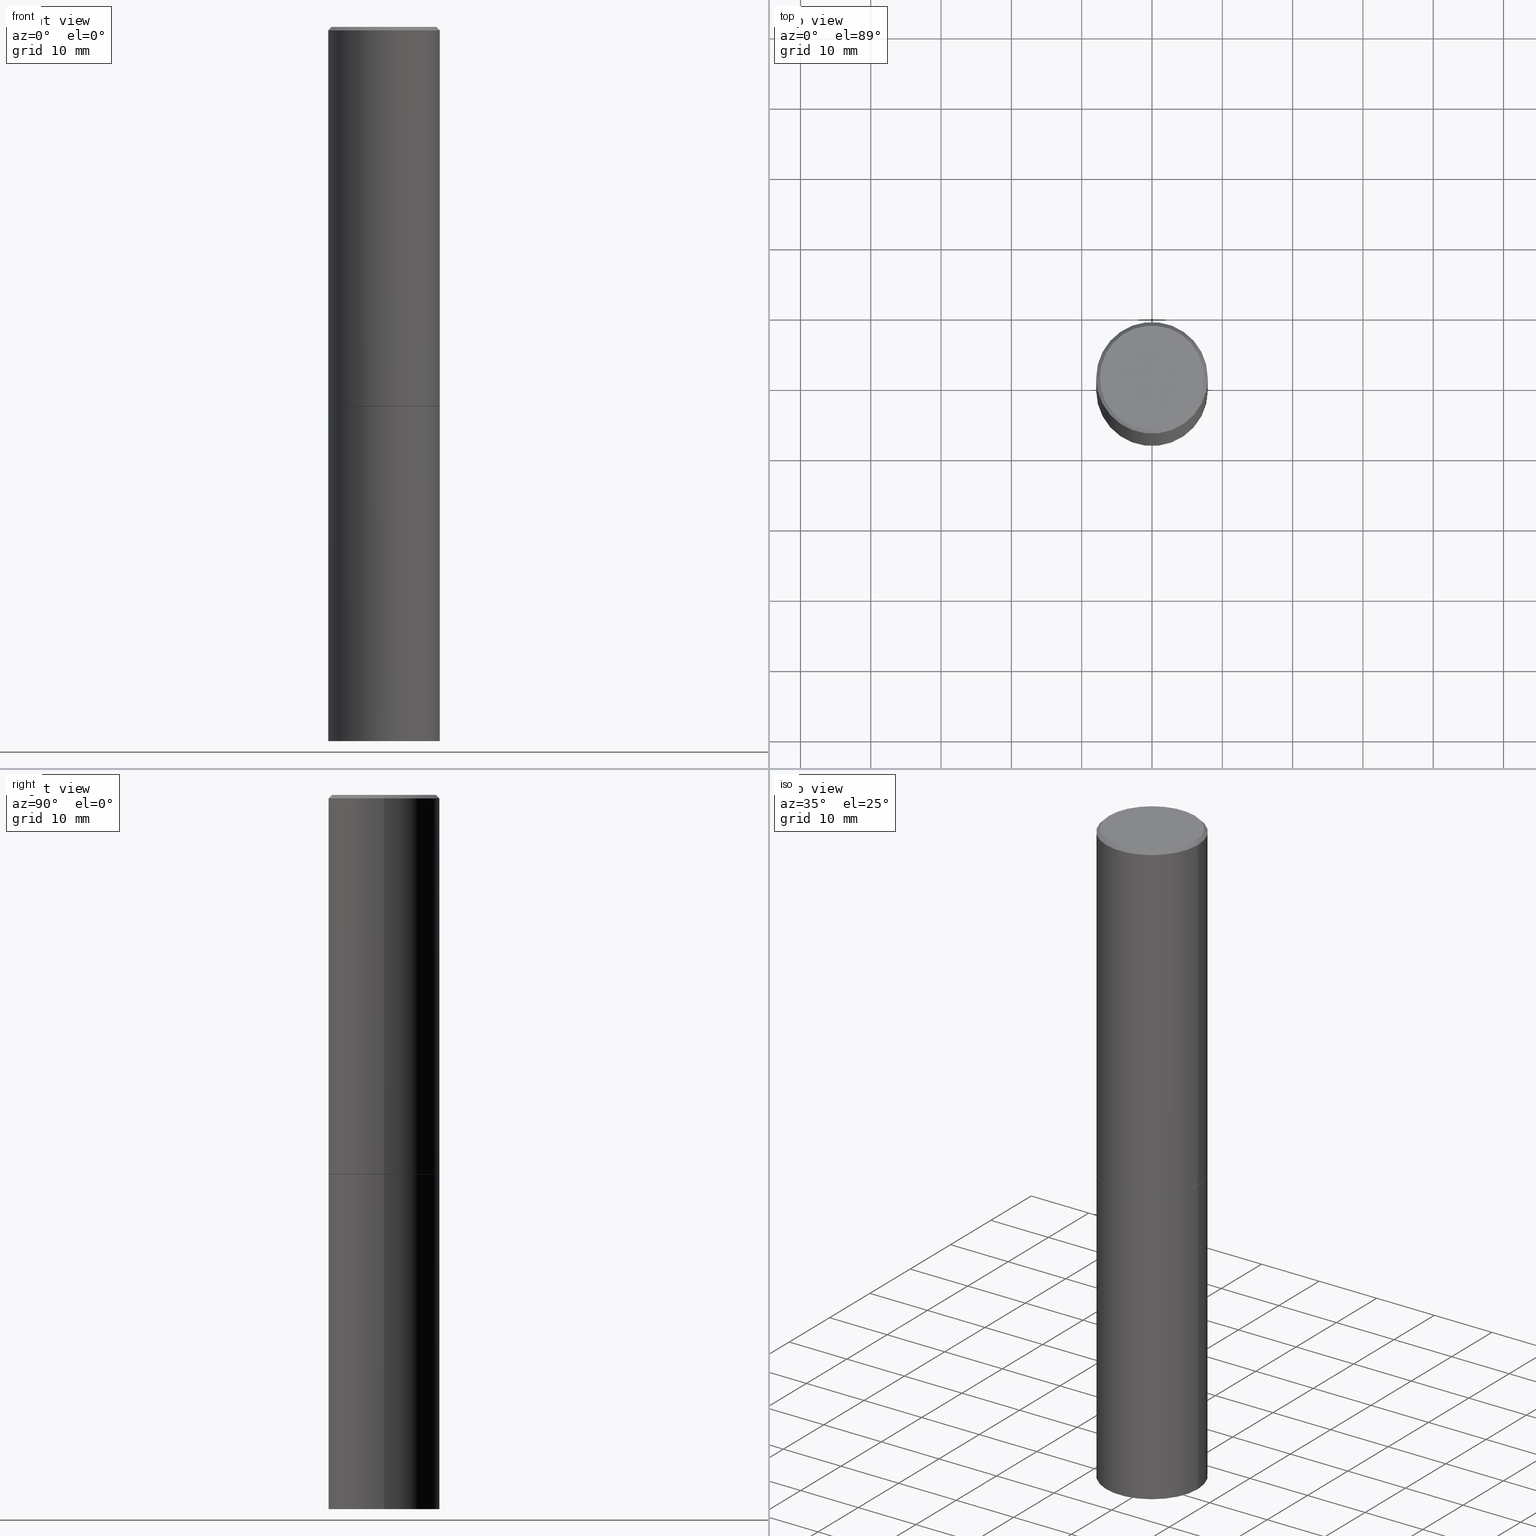
[diagram: canonical four-view strip — front | top / right | iso, engineering-drawing reading convention]
A machine part, canonical four-view strip (front | top / right | iso — engineering-drawing reading convention). The complete STEP part file that produces these views, byte-faithful:
ISO-10303-21;
HEADER;
FILE_DESCRIPTION (( 'STEP AP203' ),
    '1' );
FILE_NAME ('37562.STEP',
    '2024-02-27T22:12:02',
    ( '' ),
    ( '' ),
    'SwSTEP 2.0',
    'SolidWorks 2023',
    '' );
FILE_SCHEMA (( 'CONFIG_CONTROL_DESIGN' ));
ENDSEC;

DATA;
#1 = LOCAL_TIME ( 17, 12, 2.000000000000000000, #323 ) ;
#2 = DIRECTION ( 'NONE',  ( -0.7071067811865465735, 2.468850131082246805E-15, -0.7071067811865484609 ) ) ;
#3 = EDGE_CURVE ( 'NONE', #293, #200, #30, .T. ) ;
#4 = EDGE_CURVE ( 'NONE', #261, #140, #114, .T. ) ;
#5 = ORIENTED_EDGE ( 'NONE', *, *, #3, .F. ) ;
#6 = DIRECTION ( 'NONE',  ( 1.000000000000000000, -6.982962677686265922E-15, 4.876176775795935793E-29 ) ) ;
#7 = CIRCLE ( 'NONE', #119, 0.3124999999999998335 ) ;
#8 = FACE_OUTER_BOUND ( 'NONE', #285, .T. ) ;
#9 = CALENDAR_DATE ( 2024, 27, 2 ) ;
#10 = CARTESIAN_POINT ( 'NONE',  ( 2.042516583223231356E-15, 0.2924999999999997602, -1.019124035366569212E-15 ) ) ;
#11 = DIRECTION ( 'NONE',  ( 2.445468806185136597E-29, -3.491481338843145583E-15, -1.000000000000000000 ) ) ;
#12 = DIRECTION ( 'NONE',  ( 1.000000000000000000, -6.982962677686265133E-15, 0.000000000000000000 ) ) ;
#13 =( LENGTH_UNIT ( ) NAMED_UNIT ( * ) SI_UNIT ( $, .METRE. ) );
#14 = DIRECTION ( 'NONE',  ( -2.445468806185136877E-29, 3.491481338843145188E-15, 1.000000000000000000 ) ) ;
#15 = CARTESIAN_POINT ( 'NONE',  ( 0.2924999999999997602, -2.110215457714318353E-15, 4.268512490114932791E-18 ) ) ;
#16 = DIRECTION ( 'NONE',  ( -2.445468806185136877E-29, 3.491481338843145188E-15, 1.000000000000000000 ) ) ;
#17 = PRODUCT_RELATED_PRODUCT_CATEGORY ( 'detail', '', ( #359 ) ) ;
#18 = APPLICATION_CONTEXT ( 'configuration controlled 3d designs of mechanical parts and assemblies' ) ;
#19 = DIRECTION ( 'NONE',  ( 1.000000000000000000, -6.982962677686265133E-15, 0.000000000000000000 ) ) ;
#20 = ORIENTED_EDGE ( 'NONE', *, *, #127, .T. ) ;
#21 = PERSON_AND_ORGANIZATION ( #284, #154 ) ;
#22 = CARTESIAN_POINT ( 'NONE',  ( 4.890937612370292426E-31, -6.982962677686317493E-17, -0.02000000000000007674 ) ) ;
#23 = VECTOR ( 'NONE', #14, 39.37007874015748143 ) ;
#24 = DIRECTION ( 'NONE',  ( -1.000000000000000000, 6.982962677686265922E-15, -4.876176775795935793E-29 ) ) ;
#25 = APPROVAL_PERSON_ORGANIZATION ( #21, #265, #283 ) ;
#26 = APPROVAL_DATE_TIME ( #76, #265 ) ;
#27 = DIRECTION ( 'NONE',  ( 1.000000000000000000, -6.982962677686269077E-15, 0.000000000000000000 ) ) ;
#28 = EDGE_LOOP ( 'NONE', ( #366, #203, #69, #118 ) ) ;
#29 = VERTEX_POINT ( 'NONE', #106 ) ;
#30 = LINE ( 'NONE', #132, #278 ) ;
#31 = AXIS2_PLACEMENT_3D ( 'NONE', #100, #92, #185 ) ;
#32 = DIRECTION ( 'NONE',  ( -2.445468806185136597E-29, 3.491481338843145583E-15, 1.000000000000000000 ) ) ;
#33 = CONICAL_SURFACE ( 'NONE', #325, 0.3124999999999998335, 0.7853981633974469467 ) ;
#34 = DATE_TIME_ROLE ( 'creation_date' ) ;
#35 = DIRECTION ( 'NONE',  ( 1.000000000000000000, -6.982962677686269077E-15, 0.000000000000000000 ) ) ;
#36 = ORIENTED_EDGE ( 'NONE', *, *, #109, .T. ) ;
#37 = FACE_OUTER_BOUND ( 'NONE', #286, .T. ) ;
#38 = VECTOR ( 'NONE', #347, 39.37007874015748143 ) ;
#39 = DIRECTION ( 'NONE',  ( 1.000000000000000000, -6.982962677686265133E-15, 0.000000000000000000 ) ) ;
#40 = APPROVAL_DATE_TIME ( #300, #145 ) ;
#41 = DIRECTION ( 'NONE',  ( 1.000000000000000000, -6.982962677686266711E-15, 4.876176775795935232E-29 ) ) ;
#42 = SECURITY_CLASSIFICATION_LEVEL ( 'unclassified' ) ;
#43 = DIRECTION ( 'NONE',  ( -2.445468806185136597E-29, 3.491481338843145583E-15, 1.000000000000000000 ) ) ;
#44 = PERSON_AND_ORGANIZATION_ROLE ( 'design_owner' ) ;
#45 = CARTESIAN_POINT ( 'NONE',  ( 0.000000000000000000, 0.000000000000000000, 0.000000000000000000 ) ) ;
#46 = ADVANCED_FACE ( 'NONE', ( #328 ), #130, .T. ) ;
#47 = ADVANCED_FACE ( 'NONE', ( #277 ), #279, .T. ) ;
#48 = DIRECTION ( 'NONE',  ( -2.445468806185136597E-29, 3.491481338843145583E-15, 1.000000000000000000 ) ) ;
#49 = FACE_OUTER_BOUND ( 'NONE', #149, .T. ) ;
#50 = AXIS2_PLACEMENT_3D ( 'NONE', #89, #91, #39 ) ;
#51 = APPROVAL_PERSON_ORGANIZATION ( #258, #294, #121 ) ;
#52 = CARTESIAN_POINT ( 'NONE',  ( -0.3114999999999999991, -5.206057223148969973E-15, -2.124999999999999556 ) ) ;
#53 = PLANE ( 'NONE',  #95 ) ;
#54 = VERTEX_POINT ( 'NONE', #15 ) ;
#55 = APPLICATION_CONTEXT ( 'configuration controlled 3d designs of mechanical parts and assemblies' ) ;
#56 = CC_DESIGN_PERSON_AND_ORGANIZATION_ASSIGNMENT ( #332, #44, ( #359 ) ) ;
#57 = AXIS2_PLACEMENT_3D ( 'NONE', #94, #65, #214 ) ;
#58 = CC_DESIGN_APPROVAL ( #265, ( #84 ) ) ;
#59 = CARTESIAN_POINT ( 'NONE',  ( -0.3124999999999998890, 2.220446049250312292E-15, -1.537167215704657391E-29 ) ) ;
#60 = ORIENTED_EDGE ( 'NONE', *, *, #61, .T. ) ;
#61 = EDGE_CURVE ( 'NONE', #29, #227, #129, .T. ) ;
#62 = AXIS2_PLACEMENT_3D ( 'NONE', #235, #177, #6 ) ;
#63 = COORDINATED_UNIVERSAL_TIME_OFFSET ( 5, 0, .BEHIND. ) ;
#64 = CARTESIAN_POINT ( 'NONE',  ( 0.000000000000000000, 0.000000000000000000, 0.000000000000000000 ) ) ;
#65 = DIRECTION ( 'NONE',  ( -2.445468806185136597E-29, 3.491481338843145583E-15, 1.000000000000000000 ) ) ;
#66 =( NAMED_UNIT ( * ) PLANE_ANGLE_UNIT ( ) SI_UNIT ( $, .RADIAN. ) );
#67 = VERTEX_POINT ( 'NONE', #238 ) ;
#68 = UNCERTAINTY_MEASURE_WITH_UNIT (LENGTH_MEASURE( 1.000000000000000082E-05 ), #210, 'distance_accuracy_value', 'NONE');
#69 = ORIENTED_EDGE ( 'NONE', *, *, #205, .F. ) ;
#70 = PERSON_AND_ORGANIZATION_ROLE ( 'classification_officer' ) ;
#71 = EDGE_CURVE ( 'NONE', #54, #293, #195, .T. ) ;
#72 = CARTESIAN_POINT ( 'NONE',  ( 0.3125000000000000000, -2.182175836776958347E-15, 1.523805242436230075E-29 ) ) ;
#73 = CIRCLE ( 'NONE', #50, 0.3125000000000000000 ) ;
#74 = DIRECTION ( 'NONE',  ( -2.445468806185136597E-29, 3.491481338843145583E-15, 1.000000000000000000 ) ) ;
#75 = FACE_OUTER_BOUND ( 'NONE', #298, .T. ) ;
#76 = DATE_AND_TIME ( #112, #326 ) ;
#77 = DIRECTION ( 'NONE',  ( -2.445468806185136597E-29, 3.491481338843145583E-15, 1.000000000000000000 ) ) ;
#78 = ORIENTED_EDGE ( 'NONE', *, *, #182, .F. ) ;
#79 = CYLINDRICAL_SURFACE ( 'NONE', #152, 0.3124999999999998890 ) ;
#80 = VECTOR ( 'NONE', #236, 39.37007874015748854 ) ;
#81 = SHAPE_DEFINITION_REPRESENTATION ( #275, #276 ) ;
#82 = FACE_OUTER_BOUND ( 'NONE', #252, .T. ) ;
#83 = ORIENTED_EDGE ( 'NONE', *, *, #71, .T. ) ;
#84 = SECURITY_CLASSIFICATION ( '', '', #42 ) ;
#85 = PERSON_AND_ORGANIZATION_ROLE ( 'creator' ) ;
#86 = ADVANCED_FACE ( 'NONE', ( #49 ), #33, .T. ) ;
#87 = DIRECTION ( 'NONE',  ( 1.000000000000000000, -6.982962677686265133E-15, 0.000000000000000000 ) ) ;
#88 = PLANE ( 'NONE',  #62 ) ;
#89 = CARTESIAN_POINT ( 'NONE',  ( 5.196621213143414147E-29, -7.419397845041682046E-15, -2.124999999999999556 ) ) ;
#90 = LINE ( 'NONE', #273, #23 ) ;
#91 = DIRECTION ( 'NONE',  ( -2.445468806185136597E-29, 3.491481338843145583E-15, 1.000000000000000000 ) ) ;
#92 = DIRECTION ( 'NONE',  ( -2.445468806185136597E-29, 3.491481338843145583E-15, 1.000000000000000000 ) ) ;
#93 = DIRECTION ( 'NONE',  ( -2.445468806185136597E-29, 3.491481338843145583E-15, 1.000000000000000000 ) ) ;
#94 = CARTESIAN_POINT ( 'NONE',  ( 5.194175744337229665E-29, -7.415906363702840616E-15, -2.123999999999999666 ) ) ;
#95 = AXIS2_PLACEMENT_3D ( 'NONE', #147, #288, #313 ) ;
#96 = ORIENTED_EDGE ( 'NONE', *, *, #257, .F. ) ;
#97 = EDGE_CURVE ( 'NONE', #146, #312, #144, .T. ) ;
#98 = COORDINATED_UNIVERSAL_TIME_OFFSET ( 5, 0, .BEHIND. ) ;
#99 = DIRECTION ( 'NONE',  ( -1.000000000000000000, 6.982962677686265133E-15, 0.000000000000000000 ) ) ;
#100 = CARTESIAN_POINT ( 'NONE',  ( -1.043851414335219820E-46, 1.490343170380447200E-32, 4.268512490100411279E-18 ) ) ;
#101 = CALENDAR_DATE ( 2024, 27, 2 ) ;
#102 =( GEOMETRIC_REPRESENTATION_CONTEXT ( 3 ) GLOBAL_UNCERTAINTY_ASSIGNED_CONTEXT ( ( #68 ) ) GLOBAL_UNIT_ASSIGNED_CONTEXT ( ( #210, #66, #131 ) ) REPRESENTATION_CONTEXT ( 'NONE', 'WORKASPACE' ) );
#103 = CARTESIAN_POINT ( 'NONE',  ( -1.043851414335219820E-46, 1.490343170380447200E-32, 4.268512490100411279E-18 ) ) ;
#104 = DATE_TIME_ROLE ( 'classification_date' ) ;
#105 = DIRECTION ( 'NONE',  ( -2.445468806185136597E-29, 3.491481338843145583E-15, 1.000000000000000000 ) ) ;
#106 = CARTESIAN_POINT ( 'NONE',  ( 0.3125000000000000000, -1.614810119214954068E-14, -4.000000000000000000 ) ) ;
#107 = COORDINATED_UNIVERSAL_TIME_OFFSET ( 5, 0, .BEHIND. ) ;
#108 = AXIS2_PLACEMENT_3D ( 'NONE', #321, #322, #125 ) ;
#109 = EDGE_CURVE ( 'NONE', #227, #67, #282, .T. ) ;
#110 = ORIENTED_EDGE ( 'NONE', *, *, #4, .F. ) ;
#111 = ORIENTED_EDGE ( 'NONE', *, *, #250, .T. ) ;
#112 = CALENDAR_DATE ( 2024, 27, 2 ) ;
#113 = ADVANCED_FACE ( 'NONE', ( #75 ), #79, .T. ) ;
#114 = CIRCLE ( 'NONE', #162, 0.3114999999999999991 ) ;
#115 = ORIENTED_EDGE ( 'NONE', *, *, #229, .T. ) ;
#116 = ADVANCED_FACE ( 'NONE', ( #124 ), #255, .T. ) ;
#117 = VERTEX_POINT ( 'NONE', #272 ) ;
#118 = ORIENTED_EDGE ( 'NONE', *, *, #242, .F. ) ;
#119 = AXIS2_PLACEMENT_3D ( 'NONE', #271, #190, #133 ) ;
#120 = ORIENTED_EDGE ( 'NONE', *, *, #97, .T. ) ;
#121 = APPROVAL_ROLE ( '' ) ;
#122 = PERSON_AND_ORGANIZATION_ROLE ( 'design_supplier' ) ;
#123 = CARTESIAN_POINT ( 'NONE',  ( -0.3114999999999999991, -5.200758768800747571E-15, -2.124999999999999556 ) ) ;
#124 = FACE_OUTER_BOUND ( 'NONE', #254, .T. ) ;
#125 = DIRECTION ( 'NONE',  ( 1.000000000000000000, -6.982962677686266711E-15, 4.876176775795936353E-29 ) ) ;
#126 = EDGE_CURVE ( 'NONE', #29, #117, #241, .T. ) ;
#127 = EDGE_CURVE ( 'NONE', #146, #200, #211, .T. ) ;
#128 = LINE ( 'NONE', #268, #80 ) ;
#129 = CIRCLE ( 'NONE', #343, 0.3125000000000000000 ) ;
#130 = CYLINDRICAL_SURFACE ( 'NONE', #134, 0.3125000000000000000 ) ;
#131 =( NAMED_UNIT ( * ) SI_UNIT ( $, .STERADIAN. ) SOLID_ANGLE_UNIT ( ) );
#132 = CARTESIAN_POINT ( 'NONE',  ( -0.3124999999999998335, 2.112346210000093866E-15, -0.02000000000000007674 ) ) ;
#133 = DIRECTION ( 'NONE',  ( 1.000000000000000000, -6.982962677686265133E-15, 0.000000000000000000 ) ) ;
#134 = AXIS2_PLACEMENT_3D ( 'NONE', #45, #304, #333 ) ;
#135 = DIRECTION ( 'NONE',  ( -1.000000000000000000, 6.982962677686265133E-15, 0.000000000000000000 ) ) ;
#136 = ORIENTED_EDGE ( 'NONE', *, *, #192, .T. ) ;
#137 = DIRECTION ( 'NONE',  ( 1.000000000000000000, -6.982962677686269077E-15, 0.000000000000000000 ) ) ;
#138 = CARTESIAN_POINT ( 'NONE',  ( 0.3124999999999998335, -2.213735251080465334E-15, -0.02000000000000007674 ) ) ;
#139 = PERSON_AND_ORGANIZATION ( #284, #154 ) ;
#140 = VERTEX_POINT ( 'NONE', #220 ) ;
#141 = EDGE_CURVE ( 'NONE', #227, #29, #215, .T. ) ;
#142 = ORIENTED_EDGE ( 'NONE', *, *, #182, .T. ) ;
#143 = ORIENTED_EDGE ( 'NONE', *, *, #270, .T. ) ;
#144 = CIRCLE ( 'NONE', #159, 0.3125000000000000000 ) ;
#145 = APPROVAL ( #160, 'UNSPECIFIED' ) ;
#146 = VERTEX_POINT ( 'NONE', #335 ) ;
#147 = CARTESIAN_POINT ( 'NONE',  ( 2.182175836777010017E-15, 0.3124999999999925615, -2.125000000000000888 ) ) ;
#148 = DIRECTION ( 'NONE',  ( 1.000000000000000000, -6.982962677686269077E-15, 0.000000000000000000 ) ) ;
#149 = EDGE_LOOP ( 'NONE', ( #319, #111, #143, #5 ) ) ;
#150 = CALENDAR_DATE ( 2024, 27, 2 ) ;
#151 = FACE_OUTER_BOUND ( 'NONE', #341, .T. ) ;
#152 = AXIS2_PLACEMENT_3D ( 'NONE', #194, #170, #41 ) ;
#153 = PERSON_AND_ORGANIZATION_ROLE ( 'creator' ) ;
#154 = ORGANIZATION ( 'UNSPECIFIED', 'UNSPECIFIED', '' ) ;
#155 = EDGE_CURVE ( 'NONE', #261, #146, #309, .T. ) ;
#156 = CARTESIAN_POINT ( 'NONE',  ( 5.196621213143414147E-29, -7.419397845041682046E-15, -2.124999999999999556 ) ) ;
#157 = DIRECTION ( 'NONE',  ( 1.000000000000000000, 0.000000000000000000, 0.000000000000000000 ) ) ;
#158 = DIRECTION ( 'NONE',  ( 1.000000000000000000, -6.982962677686269077E-15, 0.000000000000000000 ) ) ;
#159 = AXIS2_PLACEMENT_3D ( 'NONE', #165, #74, #19 ) ;
#160 = APPROVAL_STATUS ( 'not_yet_approved' ) ;
#161 = CARTESIAN_POINT ( 'NONE',  ( 4.890937612370292426E-31, -6.982962677686317493E-17, -0.02000000000000007674 ) ) ;
#162 = AXIS2_PLACEMENT_3D ( 'NONE', #156, #77, #148 ) ;
#163 = VECTOR ( 'NONE', #16, 39.37007874015748143 ) ;
#164 = CONICAL_SURFACE ( 'NONE', #362, 0.3114999999999999991, 0.7853981633974141952 ) ;
#165 = CARTESIAN_POINT ( 'NONE',  ( 5.194175744337229665E-29, -7.415906363702840616E-15, -2.123999999999999666 ) ) ;
#166 = APPROVAL_PERSON_ORGANIZATION ( #139, #145, #181 ) ;
#167 = DIRECTION ( 'NONE',  ( -0.7071067811865232589, 7.493145998870265808E-15, 0.7071067811865715536 ) ) ;
#168 = CARTESIAN_POINT ( 'NONE',  ( 0.3125000000000000000, -9.598082200479797386E-15, -2.123999999999999666 ) ) ;
#169 = EDGE_CURVE ( 'NONE', #312, #171, #90, .T. ) ;
#170 = DIRECTION ( 'NONE',  ( -2.445468806185136597E-29, 3.491481338843145583E-15, 1.000000000000000000 ) ) ;
#171 = VERTEX_POINT ( 'NONE', #180 ) ;
#172 = ORIENTED_EDGE ( 'NONE', *, *, #4, .T. ) ;
#173 = AXIS2_PLACEMENT_3D ( 'NONE', #363, #186, #12 ) ;
#174 = ORIENTED_EDGE ( 'NONE', *, *, #141, .T. ) ;
#175 = PRODUCT_DEFINITION_FORMATION_WITH_SPECIFIED_SOURCE ( 'ANY', '', #359, .NOT_KNOWN. ) ;
#176 = ADVANCED_FACE ( 'NONE', ( #232 ), #164, .T. ) ;
#177 = DIRECTION ( 'NONE',  ( -2.438088387897960049E-29, 3.491481338843145188E-15, 1.000000000000000000 ) ) ;
#178 = DIRECTION ( 'NONE',  ( -2.445468806185136597E-29, 3.491481338843145583E-15, 1.000000000000000000 ) ) ;
#179 = PERSON_AND_ORGANIZATION ( #284, #154 ) ;
#180 = CARTESIAN_POINT ( 'NONE',  ( 0.3124999999999998335, -2.213735251080465334E-15, -0.02000000000000007674 ) ) ;
#181 = APPROVAL_ROLE ( '' ) ;
#182 = EDGE_CURVE ( 'NONE', #200, #171, #352, .T. ) ;
#183 = AXIS2_PLACEMENT_3D ( 'NONE', #103, #187, #306 ) ;
#184 = CC_DESIGN_APPROVAL ( #294, ( #175 ) ) ;
#185 = DIRECTION ( 'NONE',  ( 1.000000000000000000, -6.982962677686266711E-15, 4.876067333457693400E-29 ) ) ;
#186 = DIRECTION ( 'NONE',  ( -2.445468806185136597E-29, 3.491481338843145583E-15, 1.000000000000000000 ) ) ;
#187 = DIRECTION ( 'NONE',  ( -2.445468806185136597E-29, 3.491481338843145583E-15, 1.000000000000000000 ) ) ;
#188 = CARTESIAN_POINT ( 'NONE',  ( 5.196621213143414147E-29, -7.419397845041682046E-15, -2.124999999999999556 ) ) ;
#189 = AXIS2_PLACEMENT_3D ( 'NONE', #331, #48, #27 ) ;
#190 = DIRECTION ( 'NONE',  ( -2.445468806185136597E-29, 3.491481338843145583E-15, 1.000000000000000000 ) ) ;
#191 = DIRECTION ( 'NONE',  ( -2.445468806185136597E-29, 3.491481338843145583E-15, 1.000000000000000000 ) ) ;
#192 = EDGE_CURVE ( 'NONE', #117, #67, #339, .T. ) ;
#193 = DIRECTION ( 'NONE',  ( 1.000000000000000000, -6.982962677686269077E-15, 0.000000000000000000 ) ) ;
#194 = CARTESIAN_POINT ( 'NONE',  ( 0.000000000000000000, 0.000000000000000000, 0.000000000000000000 ) ) ;
#195 = CIRCLE ( 'NONE', #183, 0.2924999999999997602 ) ;
#196 = ORIENTED_EDGE ( 'NONE', *, *, #270, .F. ) ;
#197 = EDGE_LOOP ( 'NONE', ( #204, #296, #337, #142 ) ) ;
#198 = EDGE_LOOP ( 'NONE', ( #224, #20, #196, #223 ) ) ;
#199 = FACE_OUTER_BOUND ( 'NONE', #247, .T. ) ;
#200 = VERTEX_POINT ( 'NONE', #239 ) ;
#201 = AXIS2_PLACEMENT_3D ( 'NONE', #188, #32, #87 ) ;
#202 = CC_DESIGN_PERSON_AND_ORGANIZATION_ASSIGNMENT ( #179, #85, ( #175 ) ) ;
#203 = ORIENTED_EDGE ( 'NONE', *, *, #155, .T. ) ;
#204 = ORIENTED_EDGE ( 'NONE', *, *, #250, .F. ) ;
#205 = EDGE_CURVE ( 'NONE', #312, #146, #324, .T. ) ;
#206 = EDGE_CURVE ( 'NONE', #140, #261, #207, .T. ) ;
#207 = CIRCLE ( 'NONE', #295, 0.3114999999999999991 ) ;
#208 = ORIENTED_EDGE ( 'NONE', *, *, #141, .F. ) ;
#209 = MANIFOLD_SOLID_BREP ( 'Body-Move/Copy2[2]', #248 ) ;
#210 =( CONVERSION_BASED_UNIT ( 'INCH', #233 ) LENGTH_UNIT ( ) NAMED_UNIT ( #281 ) );
#211 = LINE ( 'NONE', #59, #316 ) ;
#212 = DIRECTION ( 'NONE',  ( 2.438088387897960049E-29, -3.491481338843145188E-15, -1.000000000000000000 ) ) ;
#213 = MECHANICAL_CONTEXT ( 'NONE', #18, 'mechanical' ) ;
#214 = DIRECTION ( 'NONE',  ( 1.000000000000000000, -6.982962677686265133E-15, 0.000000000000000000 ) ) ;
#215 = CIRCLE ( 'NONE', #189, 0.3125000000000000000 ) ;
#216 = LOCAL_TIME ( 17, 12, 2.000000000000000000, #299 ) ;
#217 = CARTESIAN_POINT ( 'NONE',  ( -0.3125000000000000000, 2.220446049250313081E-15, -1.537167215704658232E-29 ) ) ;
#218 = CLOSED_SHELL ( 'NONE', ( #46, #361, #317, #349 ) ) ;
#219 = LOCAL_TIME ( 17, 12, 2.000000000000000000, #98 ) ;
#220 = CARTESIAN_POINT ( 'NONE',  ( 0.3114999999999999991, -9.594590719140955956E-15, -2.124999999999999556 ) ) ;
#221 = LINE ( 'NONE', #138, #38 ) ;
#222 = DIRECTION ( 'NONE',  ( 1.000000000000000000, -6.982962677686266711E-15, 4.876176775795935232E-29 ) ) ;
#223 = ORIENTED_EDGE ( 'NONE', *, *, #169, .F. ) ;
#224 = ORIENTED_EDGE ( 'NONE', *, *, #205, .T. ) ;
#225 = ORIENTED_EDGE ( 'NONE', *, *, #127, .F. ) ;
#226 = DATE_AND_TIME ( #101, #219 ) ;
#227 = VERTEX_POINT ( 'NONE', #297 ) ;
#228 = AXIS2_PLACEMENT_3D ( 'NONE', #64, #266, #157 ) ;
#229 = EDGE_CURVE ( 'NONE', #293, #54, #302, .T. ) ;
#230 = DATE_AND_TIME ( #338, #330 ) ;
#231 = DATE_AND_TIME ( #150, #1 ) ;
#232 = FACE_OUTER_BOUND ( 'NONE', #28, .T. ) ;
#233 = LENGTH_MEASURE_WITH_UNIT ( LENGTH_MEASURE( 0.02539999999999999897 ), #13 );
#234 = PLANE ( 'NONE',  #329 ) ;
#235 = CARTESIAN_POINT ( 'NONE',  ( 5.196621213143414147E-29, -7.419397845041682046E-15, -2.124999999999999556 ) ) ;
#236 = DIRECTION ( 'NONE',  ( 0.7071067811865232589, -2.468850131082003836E-15, 0.7071067811865715536 ) ) ;
#237 = AXIS2_PLACEMENT_3D ( 'NONE', #310, #105, #222 ) ;
#238 = CARTESIAN_POINT ( 'NONE',  ( -0.3125000000000000000, -8.472215550956819896E-15, -2.124999999999999556 ) ) ;
#239 = CARTESIAN_POINT ( 'NONE',  ( -0.3124999999999998335, 2.112346210000093866E-15, -0.02000000000000007674 ) ) ;
#240 = ADVANCED_FACE ( 'NONE', ( #151 ), #267, .F. ) ;
#241 = LINE ( 'NONE', #72, #163 ) ;
#242 = EDGE_CURVE ( 'NONE', #140, #312, #128, .T. ) ;
#243 = PERSON_AND_ORGANIZATION ( #284, #154 ) ;
#244 = EDGE_LOOP ( 'NONE', ( #60, #36, #365, #353 ) ) ;
#245 = CC_DESIGN_PERSON_AND_ORGANIZATION_ASSIGNMENT ( #291, #153, ( #274 ) ) ;
#246 = DIRECTION ( 'NONE',  ( -2.445468806185136877E-29, 3.491481338843145188E-15, 1.000000000000000000 ) ) ;
#247 = EDGE_LOOP ( 'NONE', ( #315, #174, #358, #96 ) ) ;
#248 = CLOSED_SHELL ( 'NONE', ( #176, #314, #86, #47, #113, #116, #360, #240 ) ) ;
#249 = VECTOR ( 'NONE', #167, 39.37007874015748854 ) ;
#250 = EDGE_CURVE ( 'NONE', #54, #171, #221, .T. ) ;
#251 = CARTESIAN_POINT ( 'NONE',  ( -0.2924999999999997602, 2.077431396611662611E-15, 4.268512490086005323E-18 ) ) ;
#252 = EDGE_LOOP ( 'NONE', ( #136, #318 ) ) ;
#253 = APPLICATION_PROTOCOL_DEFINITION ( 'international standard', 'config_control_design', 1994, #55 ) ;
#254 = EDGE_LOOP ( 'NONE', ( #289, #172, #264, #256 ) ) ;
#255 = CONICAL_SURFACE ( 'NONE', #336, 0.3114999999999999991, 0.7853981633974141952 ) ;
#256 = ORIENTED_EDGE ( 'NONE', *, *, #97, .F. ) ;
#257 = EDGE_CURVE ( 'NONE', #67, #117, #73, .T. ) ;
#258 = PERSON_AND_ORGANIZATION ( #284, #154 ) ;
#259 = AXIS2_PLACEMENT_3D ( 'NONE', #22, #11, #135 ) ;
#260 = DIRECTION ( 'NONE',  ( 2.438088387897960049E-29, -3.491481338843145188E-15, -1.000000000000000000 ) ) ;
#261 = VERTEX_POINT ( 'NONE', #123 ) ;
#262 = CC_DESIGN_DATE_AND_TIME_ASSIGNMENT ( #230, #34, ( #274 ) ) ;
#263 = CARTESIAN_POINT ( 'NONE',  ( 2.182175836777055771E-15, 0.3124999999999860667, -4.000000000000000888 ) ) ;
#264 = ORIENTED_EDGE ( 'NONE', *, *, #242, .T. ) ;
#265 = APPROVAL ( #354, 'UNSPECIFIED' ) ;
#266 = DIRECTION ( 'NONE',  ( 0.000000000000000000, 0.000000000000000000, 1.000000000000000000 ) ) ;
#267 = PLANE ( 'NONE',  #350 ) ;
#268 = CARTESIAN_POINT ( 'NONE',  ( 0.3114999999999999991, -9.594590719140955956E-15, -2.124999999999999556 ) ) ;
#269 = PERSON_AND_ORGANIZATION ( #284, #154 ) ;
#270 = EDGE_CURVE ( 'NONE', #171, #200, #7, .T. ) ;
#271 = CARTESIAN_POINT ( 'NONE',  ( 4.890937612370292426E-31, -6.982962677686317493E-17, -0.02000000000000007674 ) ) ;
#272 = CARTESIAN_POINT ( 'NONE',  ( 0.3125000000000000000, -9.601573681818640393E-15, -2.124999999999999556 ) ) ;
#273 = CARTESIAN_POINT ( 'NONE',  ( 0.3124999999999998890, -2.182175836776957558E-15, 1.523805242436229235E-29 ) ) ;
#274 = PRODUCT_DEFINITION ( 'UNKNOWN', '', #175, #287 ) ;
#275 = PRODUCT_DEFINITION_SHAPE ( 'NONE', 'NONE',  #274 ) ;
#276 = ADVANCED_BREP_SHAPE_REPRESENTATION ( '37562', ( #307, #209, #228 ), #102 ) ;
#277 = FACE_OUTER_BOUND ( 'NONE', #197, .T. ) ;
#278 = VECTOR ( 'NONE', #2, 39.37007874015748143 ) ;
#279 = CONICAL_SURFACE ( 'NONE', #259, 0.3124999999999998335, 0.7853981633974469467 ) ;
#280 = ORIENTED_EDGE ( 'NONE', *, *, #61, .F. ) ;
#281 = DIMENSIONAL_EXPONENTS ( 1.000000000000000000, 0.000000000000000000, 0.000000000000000000, 0.000000000000000000, 0.000000000000000000, 0.000000000000000000, 0.000000000000000000 ) ;
#282 = LINE ( 'NONE', #217, #308 ) ;
#283 = APPROVAL_ROLE ( '' ) ;
#284 = PERSON ( 'UNSPECIFIED', 'UNSPECIFIED', 'UNSPECIFIED', ('UNSPECIFIED'), ('UNSPECIFIED'), ('UNSPECIFIED') ) ;
#285 = EDGE_LOOP ( 'NONE', ( #280, #208 ) ) ;
#286 = EDGE_LOOP ( 'NONE', ( #311, #110 ) ) ;
#287 = DESIGN_CONTEXT ( 'detailed design', #55, 'design' ) ;
#288 = DIRECTION ( 'NONE',  ( 2.438088387897960049E-29, -3.491481338843145188E-15, -1.000000000000000000 ) ) ;
#289 = ORIENTED_EDGE ( 'NONE', *, *, #155, .F. ) ;
#290 = CC_DESIGN_PERSON_AND_ORGANIZATION_ASSIGNMENT ( #269, #70, ( #84 ) ) ;
#291 = PERSON_AND_ORGANIZATION ( #284, #154 ) ;
#292 = CYLINDRICAL_SURFACE ( 'NONE', #108, 0.3125000000000000000 ) ;
#293 = VERTEX_POINT ( 'NONE', #251 ) ;
#294 = APPROVAL ( #342, 'UNSPECIFIED' ) ;
#295 = AXIS2_PLACEMENT_3D ( 'NONE', #351, #178, #35 ) ;
#296 = ORIENTED_EDGE ( 'NONE', *, *, #229, .F. ) ;
#297 = CARTESIAN_POINT ( 'NONE',  ( -0.3125000000000000000, -8.472215550956819896E-15, -4.000000000000000000 ) ) ;
#298 = EDGE_LOOP ( 'NONE', ( #225, #120, #334, #78 ) ) ;
#299 = COORDINATED_UNIVERSAL_TIME_OFFSET ( 5, 0, .BEHIND. ) ;
#300 = DATE_AND_TIME ( #9, #216 ) ;
#301 = DIRECTION ( 'NONE',  ( -1.000000000000000000, 6.982962677686265922E-15, -4.876176775795935793E-29 ) ) ;
#302 = CIRCLE ( 'NONE', #31, 0.2924999999999997602 ) ;
#303 = DIRECTION ( 'NONE',  ( 2.445468806185136597E-29, -3.491481338843145583E-15, -1.000000000000000000 ) ) ;
#304 = DIRECTION ( 'NONE',  ( -2.445468806185136597E-29, 3.491481338843145583E-15, 1.000000000000000000 ) ) ;
#305 = CC_DESIGN_PERSON_AND_ORGANIZATION_ASSIGNMENT ( #243, #122, ( #175 ) ) ;
#306 = DIRECTION ( 'NONE',  ( 1.000000000000000000, -6.982962677686266711E-15, 4.876067333457693400E-29 ) ) ;
#307 = MANIFOLD_SOLID_BREP ( 'Body-Move/Copy2[1]', #218 ) ;
#308 = VECTOR ( 'NONE', #246, 39.37007874015748143 ) ;
#309 = LINE ( 'NONE', #52, #249 ) ;
#310 = CARTESIAN_POINT ( 'NONE',  ( 0.000000000000000000, 0.000000000000000000, 0.000000000000000000 ) ) ;
#311 = ORIENTED_EDGE ( 'NONE', *, *, #206, .F. ) ;
#312 = VERTEX_POINT ( 'NONE', #168 ) ;
#313 = DIRECTION ( 'NONE',  ( -1.000000000000000000, 6.982962677686265922E-15, -4.876176775795935793E-29 ) ) ;
#314 = ADVANCED_FACE ( 'NONE', ( #355 ), #357, .T. ) ;
#315 = ORIENTED_EDGE ( 'NONE', *, *, #109, .F. ) ;
#316 = VECTOR ( 'NONE', #340, 39.37007874015748143 ) ;
#317 = ADVANCED_FACE ( 'NONE', ( #82 ), #53, .F. ) ;
#318 = ORIENTED_EDGE ( 'NONE', *, *, #257, .T. ) ;
#319 = ORIENTED_EDGE ( 'NONE', *, *, #71, .F. ) ;
#320 = CC_DESIGN_DATE_AND_TIME_ASSIGNMENT ( #226, #104, ( #84 ) ) ;
#321 = CARTESIAN_POINT ( 'NONE',  ( 0.000000000000000000, 0.000000000000000000, 0.000000000000000000 ) ) ;
#322 = DIRECTION ( 'NONE',  ( -2.445468806185136597E-29, 3.491481338843145583E-15, 1.000000000000000000 ) ) ;
#323 = COORDINATED_UNIVERSAL_TIME_OFFSET ( 5, 0, .BEHIND. ) ;
#324 = CIRCLE ( 'NONE', #57, 0.3125000000000000000 ) ;
#325 = AXIS2_PLACEMENT_3D ( 'NONE', #161, #303, #99 ) ;
#326 = LOCAL_TIME ( 17, 12, 2.000000000000000000, #107 ) ;
#327 = CARTESIAN_POINT ( 'NONE',  ( 5.196621213143414147E-29, -7.419397845041682046E-15, -2.124999999999999556 ) ) ;
#328 = FACE_OUTER_BOUND ( 'NONE', #244, .T. ) ;
#329 = AXIS2_PLACEMENT_3D ( 'NONE', #263, #260, #24 ) ;
#330 = LOCAL_TIME ( 17, 12, 2.000000000000000000, #63 ) ;
#331 = CARTESIAN_POINT ( 'NONE',  ( 9.781875224740546387E-29, -1.396592535537258233E-14, -4.000000000000000000 ) ) ;
#332 = PERSON_AND_ORGANIZATION ( #284, #154 ) ;
#333 = DIRECTION ( 'NONE',  ( 1.000000000000000000, -6.982962677686266711E-15, 4.876176775795936353E-29 ) ) ;
#334 = ORIENTED_EDGE ( 'NONE', *, *, #169, .T. ) ;
#335 = CARTESIAN_POINT ( 'NONE',  ( -0.3125000000000000000, -1.522421945989535918E-15, -2.123999999999999666 ) ) ;
#336 = AXIS2_PLACEMENT_3D ( 'NONE', #327, #43, #158 ) ;
#337 = ORIENTED_EDGE ( 'NONE', *, *, #3, .T. ) ;
#338 = CALENDAR_DATE ( 2024, 27, 2 ) ;
#339 = CIRCLE ( 'NONE', #201, 0.3125000000000000000 ) ;
#340 = DIRECTION ( 'NONE',  ( -2.445468806185136877E-29, 3.491481338843145188E-15, 1.000000000000000000 ) ) ;
#341 = EDGE_LOOP ( 'NONE', ( #115, #83 ) ) ;
#342 = APPROVAL_STATUS ( 'not_yet_approved' ) ;
#343 = AXIS2_PLACEMENT_3D ( 'NONE', #356, #191, #137 ) ;
#344 = APPLICATION_PROTOCOL_DEFINITION ( 'international standard', 'config_control_design', 1994, #18 ) ;
#345 = CC_DESIGN_SECURITY_CLASSIFICATION ( #84, ( #175 ) ) ;
#346 = APPROVAL_DATE_TIME ( #231, #294 ) ;
#347 = DIRECTION ( 'NONE',  ( 0.7071067811865465735, -7.319954787623252890E-15, -0.7071067811865484609 ) ) ;
#348 = CARTESIAN_POINT ( 'NONE',  ( 5.196621213143414147E-29, -7.419397845041682046E-15, -2.124999999999999556 ) ) ;
#349 = ADVANCED_FACE ( 'NONE', ( #199 ), #292, .T. ) ;
#350 = AXIS2_PLACEMENT_3D ( 'NONE', #10, #212, #301 ) ;
#351 = CARTESIAN_POINT ( 'NONE',  ( 5.196621213143414147E-29, -7.419397845041682046E-15, -2.124999999999999556 ) ) ;
#352 = CIRCLE ( 'NONE', #173, 0.3124999999999998335 ) ;
#353 = ORIENTED_EDGE ( 'NONE', *, *, #126, .F. ) ;
#354 = APPROVAL_STATUS ( 'not_yet_approved' ) ;
#355 = FACE_OUTER_BOUND ( 'NONE', #198, .T. ) ;
#356 = CARTESIAN_POINT ( 'NONE',  ( 9.781875224740546387E-29, -1.396592535537258233E-14, -4.000000000000000000 ) ) ;
#357 = CYLINDRICAL_SURFACE ( 'NONE', #237, 0.3124999999999998890 ) ;
#358 = ORIENTED_EDGE ( 'NONE', *, *, #126, .T. ) ;
#359 = PRODUCT ( '37562', '37562', '', ( #213 ) ) ;
#360 = ADVANCED_FACE ( 'NONE', ( #37 ), #88, .F. ) ;
#361 = ADVANCED_FACE ( 'NONE', ( #8 ), #234, .T. ) ;
#362 = AXIS2_PLACEMENT_3D ( 'NONE', #348, #93, #193 ) ;
#363 = CARTESIAN_POINT ( 'NONE',  ( 4.890937612370292426E-31, -6.982962677686317493E-17, -0.02000000000000007674 ) ) ;
#364 = CC_DESIGN_APPROVAL ( #145, ( #274 ) ) ;
#365 = ORIENTED_EDGE ( 'NONE', *, *, #192, .F. ) ;
#366 = ORIENTED_EDGE ( 'NONE', *, *, #206, .T. ) ;
ENDSEC;
END-ISO-10303-21;
